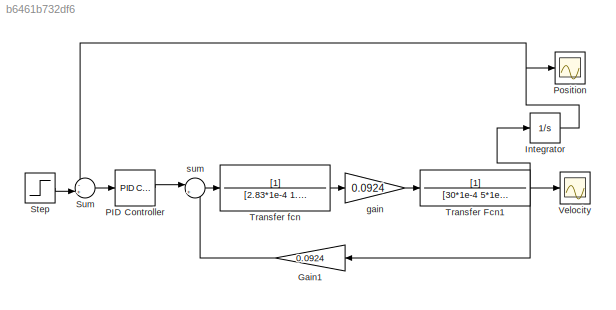
MODEL slx_b6461b732df6
KIND model
CONFIG AbsTol = auto
CONFIG EnableMultiTasking = off
CONFIG FixedStep = auto
CONFIG MaxStep = auto
CONFIG MinStep = auto
CONFIG RelTol = 1e-3
CONFIG SampleTimeConstraint = Unconstrained
CONFIG SolverName = VariableStepAuto
CONFIG StartTime = 0.0
CONFIG StopTime = 10
BLOCK [Gain] Gain1
  Gain = 0.0924
  NameLocation = top
BLOCK [Integrator] Integrator
BLOCK [Reference] PID Controller  REF=slpidlib/PID Controller
  LibrarySourceBlock = simulink/Continuous/PID Controller
  SourceBlock = slpidlib/PID Controller
  SourceType = PID 1dof
BLOCK [Scope] Position
  Floating = off
  NumInputPorts = 1
  ScopeSpecificationString = Simulink.scopes.TimeScopeBlockCfg('CurrentConfiguration', extmgr.ConfigurationSet(extmgr.Configuration('Core','General UI',true),extmgr.Configuration('Core','Source UI',true),extmgr.Configuration('Sources','WiredSimulink',true),extmgr.Configuration('Visuals','Time Domain',true,'SerializedDisplays',{struct('MinYLimReal','-3.64972','MaxYLimReal','32.84749','YLabelReal','','MinYLimMag','0.00000','Max...<+1473ch>
BLOCK [Step] Step
  After = 20
  SampleTime = 0
BLOCK [Sum] Sum
  Inputs = -+|
BLOCK [TransferFcn] Transfer Fcn1
  Denominator = [30*1e-4 5*1e-3]
BLOCK [TransferFcn] Transfer fcn
  Denominator = [2.83*1e-4 1.75]
BLOCK [Scope] Velocity
  Floating = off
  NumInputPorts = 1
  ScopeSpecificationString = Simulink.scopes.TimeScopeBlockCfg('CurrentConfiguration', extmgr.ConfigurationSet(extmgr.Configuration('Core','General UI',true),extmgr.Configuration('Core','Source UI',true),extmgr.Configuration('Sources','WiredSimulink',true,'DataLoggingVariableName','ScopeData1'),extmgr.Configuration('Visuals','Time Domain',true,'SerializedDisplays',{struct('MinYLimReal','-184.62146','MaxYLimReal','385.40938','...<+1552ch>
BLOCK [Gain] gain
  Gain = 0.0924
BLOCK [Sum] sum
  Inputs = |+-
  NameLocation = top
LINE Gain1:1 -> sum:2
NET Integrator:1 -> Position:1, Sum:1
LINE PID Controller:1 -> sum:1
LINE Step:1 -> Sum:2
LINE Sum:1 -> PID Controller:1
NET Transfer Fcn1:1 -> Gain1:1, Integrator:1, Velocity:1
LINE Transfer fcn:1 -> gain:1
LINE gain:1 -> Transfer Fcn1:1
LINE sum:1 -> Transfer fcn:1
note: NET lines group one-source signal fan-out (src -> all destinations, sorted); 1:1 wires keep LINE
